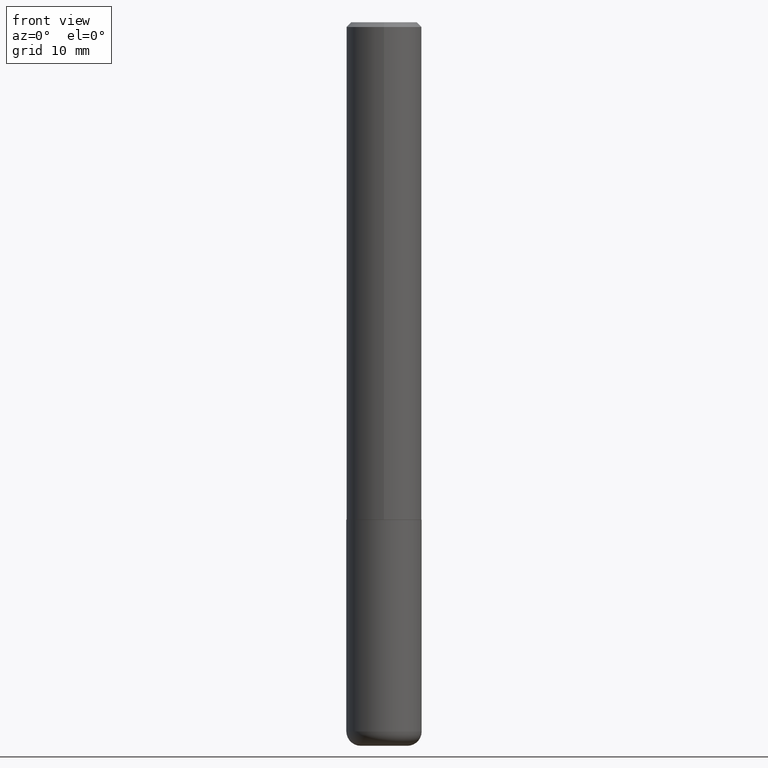
[diagram: clean part render]
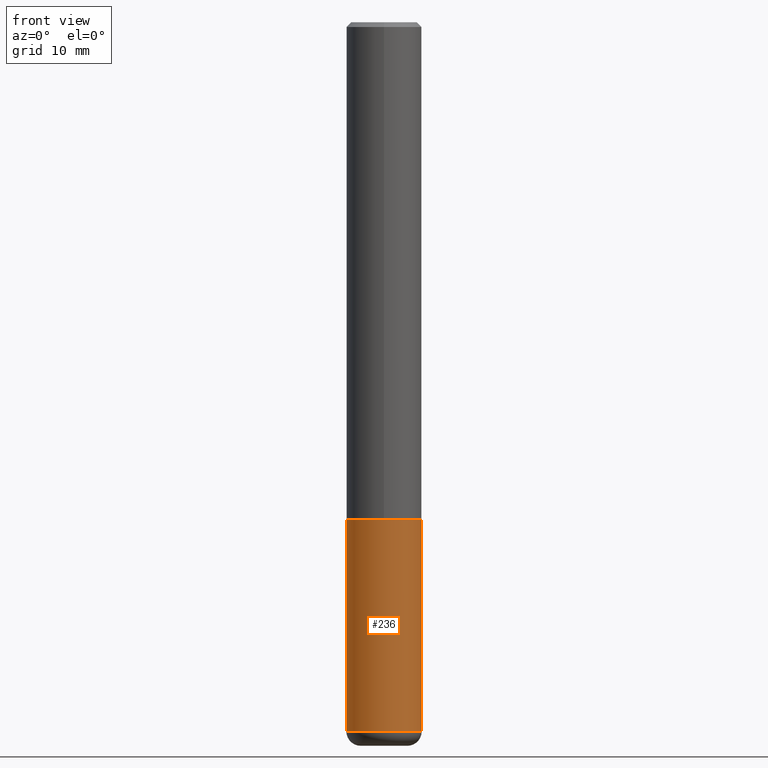
[diagram: same view with one face highlighted and labeled with its STEP entity id]
A machine part, front view. The second image highlights one B-rep face of the part: STEP entity #236.
In plain terms, the highlighted cylindrical surface (partial cylindrical patch) has radius 3.9688 mm, axis along (-0, 0, 1).
Its self-contained STEP definition (entity closure, byte-faithful):
#8 = VECTOR ( 'NONE', #264, 39.37007874015748143 ) ;
#10 = EDGE_CURVE ( 'NONE', #331, #301, #122, .T. ) ;
#14 = DIRECTION ( 'NONE',  ( 1.000000000000000000, -6.982962677686269077E-15, 0.000000000000000000 ) ) ;
#19 = ORIENTED_EDGE ( 'NONE', *, *, #10, .T. ) ;
#29 = CARTESIAN_POINT ( 'NONE',  ( 0.1562499999999999722, -1.135604305458732800E-14, -2.940000000000000391 ) ) ;
#32 = ORIENTED_EDGE ( 'NONE', *, *, #285, .F. ) ;
#47 = EDGE_LOOP ( 'NONE', ( #32, #19, #315, #192 ) ) ;
#48 = AXIS2_PLACEMENT_3D ( 'NONE', #238, #235, #14 ) ;
#53 = EDGE_CURVE ( 'NONE', #313, #181, #231, .T. ) ;
#65 = LINE ( 'NONE', #299, #8 ) ;
#96 = EDGE_CURVE ( 'NONE', #301, #181, #65, .T. ) ;
#98 = FACE_OUTER_BOUND ( 'NONE', #47, .T. ) ;
#100 = DIRECTION ( 'NONE',  ( -2.445468806185136597E-29, 3.491481338843145583E-15, 1.000000000000000000 ) ) ;
#101 = DIRECTION ( 'NONE',  ( 1.000000000000000000, -6.982962677686266711E-15, 4.876176775795936353E-29 ) ) ;
#122 = CIRCLE ( 'NONE', #380, 0.1562500000000000000 ) ;
#134 = AXIS2_PLACEMENT_3D ( 'NONE', #199, #326, #101 ) ;
#147 = CARTESIAN_POINT ( 'NONE',  ( 0.1562500000000000000, -8.292268179752468540E-15, -2.062500000000000000 ) ) ;
#171 = CARTESIAN_POINT ( 'NONE',  ( -0.1562500000000000000, -7.622844674156262556E-15, -2.062500000000000000 ) ) ;
#181 = VERTEX_POINT ( 'NONE', #147 ) ;
#186 = CARTESIAN_POINT ( 'NONE',  ( -0.1562499999999999722, -9.154732111573693074E-15, -2.940000000000000391 ) ) ;
#192 = ORIENTED_EDGE ( 'NONE', *, *, #53, .F. ) ;
#199 = CARTESIAN_POINT ( 'NONE',  ( 0.000000000000000000, 0.000000000000000000, 0.000000000000000000 ) ) ;
#210 = CARTESIAN_POINT ( 'NONE',  ( -0.1562500000000000000, 1.110223024625156540E-15, -7.685836078523291160E-30 ) ) ;
#231 = CIRCLE ( 'NONE', #48, 0.1562500000000000000 ) ;
#235 = DIRECTION ( 'NONE',  ( -2.445468806185136597E-29, 3.491481338843145583E-15, 1.000000000000000000 ) ) ;
#236 = ADVANCED_FACE ( 'NONE', ( #98 ), #296, .T. ) ;
#238 = CARTESIAN_POINT ( 'NONE',  ( 5.043779412756844791E-29, -7.201180261363988578E-15, -2.062500000000000000 ) ) ;
#245 = LINE ( 'NONE', #210, #374 ) ;
#264 = DIRECTION ( 'NONE',  ( -2.445468806185136877E-29, 3.491481338843145188E-15, 1.000000000000000000 ) ) ;
#285 = EDGE_CURVE ( 'NONE', #331, #313, #245, .T. ) ;
#294 = DIRECTION ( 'NONE',  ( 1.000000000000000000, -6.982962677686262766E-15, 0.000000000000000000 ) ) ;
#296 = CYLINDRICAL_SURFACE ( 'NONE', #134, 0.1562500000000000000 ) ;
#299 = CARTESIAN_POINT ( 'NONE',  ( 0.1562500000000000000, -1.091087918388479174E-15, 7.619026212181150377E-30 ) ) ;
#301 = VERTEX_POINT ( 'NONE', #29 ) ;
#313 = VERTEX_POINT ( 'NONE', #171 ) ;
#315 = ORIENTED_EDGE ( 'NONE', *, *, #96, .T. ) ;
#326 = DIRECTION ( 'NONE',  ( -2.445468806185136597E-29, 3.491481338843145583E-15, 1.000000000000000000 ) ) ;
#331 = VERTEX_POINT ( 'NONE', #186 ) ;
#360 = CARTESIAN_POINT ( 'NONE',  ( 7.189678290184301639E-29, -1.026495513619884961E-14, -2.940000000000000391 ) ) ;
#374 = VECTOR ( 'NONE', #381, 39.37007874015748143 ) ;
#380 = AXIS2_PLACEMENT_3D ( 'NONE', #360, #100, #294 ) ;
#381 = DIRECTION ( 'NONE',  ( -2.445468806185136877E-29, 3.491481338843145188E-15, 1.000000000000000000 ) ) ;